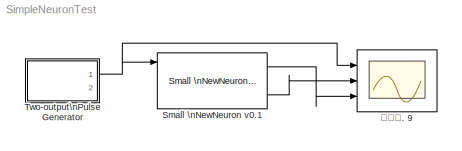
MODEL SimpleNeuronTest
KIND model
BLOCK [Reference] Small \nNewNeuron v0.1  REF=NeuroModelerLibrary/Simple Cells/Small \nNewNeuron v0.1
  AllowZeroVariantControls = off
  AutoFrameSizeCalculation = off
  Latency = 0
  Ports = [5, 3]
  PropagateVariantConditions = off
  RTWMemSecDataConstants = Inherit from model
  RTWMemSecDataInternal = Inherit from model
  RTWMemSecDataParameters = Inherit from model
  RTWMemSecFuncExecute = Inherit from model
  RTWMemSecFuncInitTerm = Inherit from model
  SID = 448
  ShowPortLabels = FromPortIcon
  SourceBlock = NeuroModelerLibrary/Simple Cells/Small \nNewNeuron v0.1
  SourceType = SubSystem
  SystemSampleTime = -1
  VariantActivationTime = update diagram
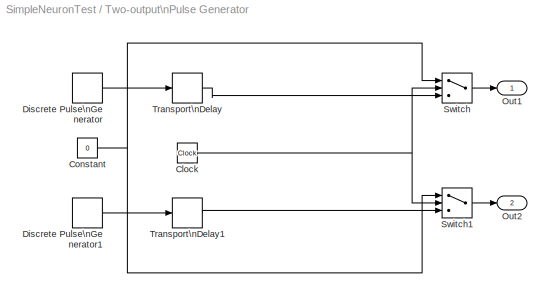
BLOCK [SubSystem] Two-output\nPulse Generator
  Ports = [0, 2]
  RequestExecContextInheritance = off
  SID = 437
BLOCK [Clock] Two-output\nPulse Generator/Clock
  SID = 438
BLOCK [Constant] Two-output\nPulse Generator/Constant
  SID = 439
  Value = 0
BLOCK [DiscretePulseGenerator] Two-output\nPulse Generator/Discrete Pulse\nGenerator
  Amplitude = A
  Period = P1
  Ports = [0, 1]
  PulseWidth = PW
  SID = 440
  SampleTime = ST
BLOCK [DiscretePulseGenerator] Two-output\nPulse Generator/Discrete Pulse\nGenerator1
  Amplitude = A
  Period = P2
  Ports = [0, 1]
  PulseWidth = PW
  SID = 441
  SampleTime = ST
BLOCK [Outport] Two-output\nPulse Generator/Out1
  InitialOutput = 0
  SID = 446
  VectorParamsAs1DForOutWhenUnconnected = off
BLOCK [Outport] Two-output\nPulse Generator/Out2
  InitialOutput = 0
  Port = 2
  SID = 447
  VectorParamsAs1DForOutWhenUnconnected = off
BLOCK [Switch] Two-output\nPulse Generator/Switch
  SID = 442
  Threshold = OOff1
BLOCK [Switch] Two-output\nPulse Generator/Switch1
  SID = 443
  Threshold = OOff2
BLOCK [TransportDelay] Two-output\nPulse Generator/Transport\nDelay
  DelayTime = OOn1
  Ports = [1, 1]
  SID = 444
BLOCK [TransportDelay] Two-output\nPulse Generator/Transport\nDelay1
  DelayTime = OOn2
  Ports = [1, 1]
  SID = 445
BLOCK [Scope] ðèñ. 9
  Floating = off
  NumInputPorts = 3
  Ports = [3]
  SID = 99
  ScopeSpecificationString = Simulink.scopes.TimeScopeBlockCfg('CurrentConfiguration', extmgr.ConfigurationSet(extmgr.Configuration('Core','General UI',true,'FigureColor',[1 1 1]),extmgr.Configuration('Core','Source UI',true),extmgr.Configuration('Sources','WiredSimulink',true,'DataLoggingVariableName','ScopeData2','DataLoggingSaveFormat','StructureWithTime','DataLoggingMaxPoints','50000','DataLoggingLimitDataPoints',true,'Da...<+3514ch>
LINE Small \nNewNeuron v0.1:1 -> ðèñ. 9:3
LINE Small \nNewNeuron v0.1:3 -> ðèñ. 9:2
NET Two-output\nPulse Generator/Clock:1 -> Two-output\nPulse Generator/Switch1:2, Two-output\nPulse Generator/Switch:2
NET Two-output\nPulse Generator/Constant:1 -> Two-output\nPulse Generator/Switch1:1, Two-output\nPulse Generator/Switch:1
LINE Two-output\nPulse Generator/Discrete Pulse\nGenerator1:1 -> Two-output\nPulse Generator/Transport\nDelay1:1
LINE Two-output\nPulse Generator/Discrete Pulse\nGenerator:1 -> Two-output\nPulse Generator/Transport\nDelay:1
LINE Two-output\nPulse Generator/Switch1:1 -> Two-output\nPulse Generator/Out2:1
LINE Two-output\nPulse Generator/Switch:1 -> Two-output\nPulse Generator/Out1:1
LINE Two-output\nPulse Generator/Transport\nDelay1:1 -> Two-output\nPulse Generator/Switch1:3
LINE Two-output\nPulse Generator/Transport\nDelay:1 -> Two-output\nPulse Generator/Switch:3
NET Two-output\nPulse Generator:1 -> Small \nNewNeuron v0.1:1, ðèñ. 9:1
note: NET lines group one-source signal fan-out (src -> all destinations, sorted); 1:1 wires keep LINE
